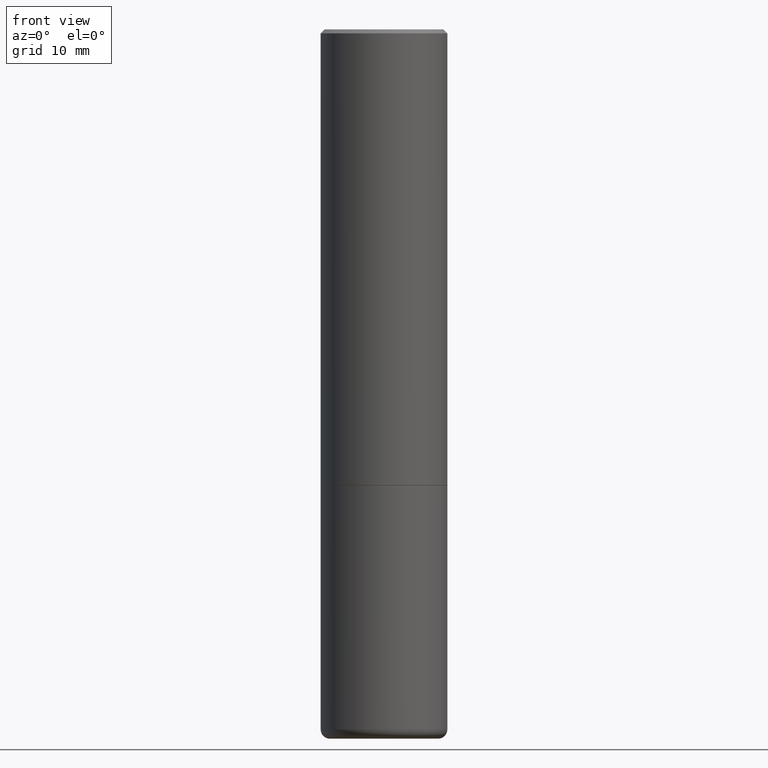
[diagram: clean part render]
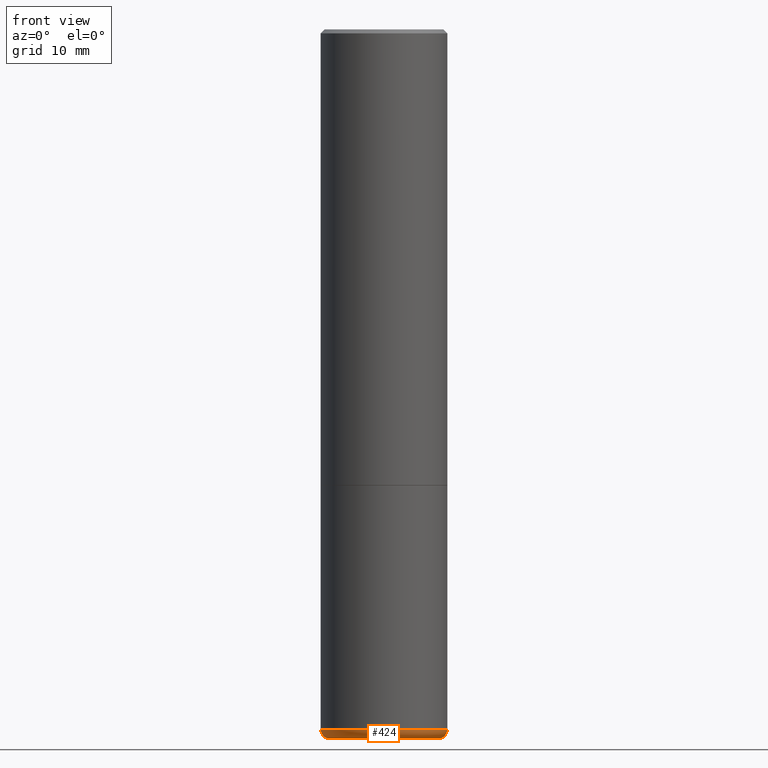
[diagram: same view with one face highlighted and labeled with its STEP entity id]
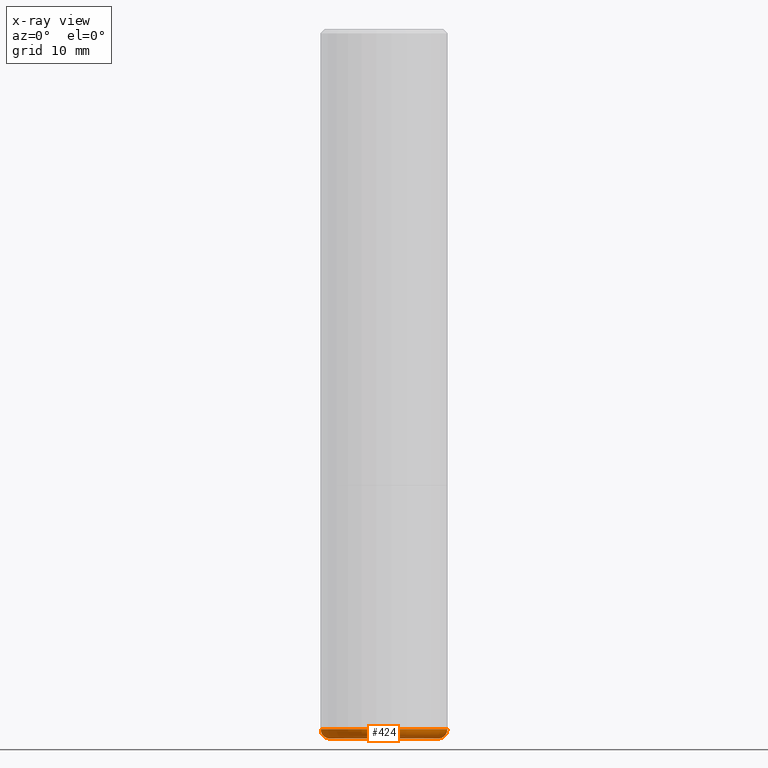
[diagram: x-ray of the same camera — body ghosted, the highlighted face saturated]
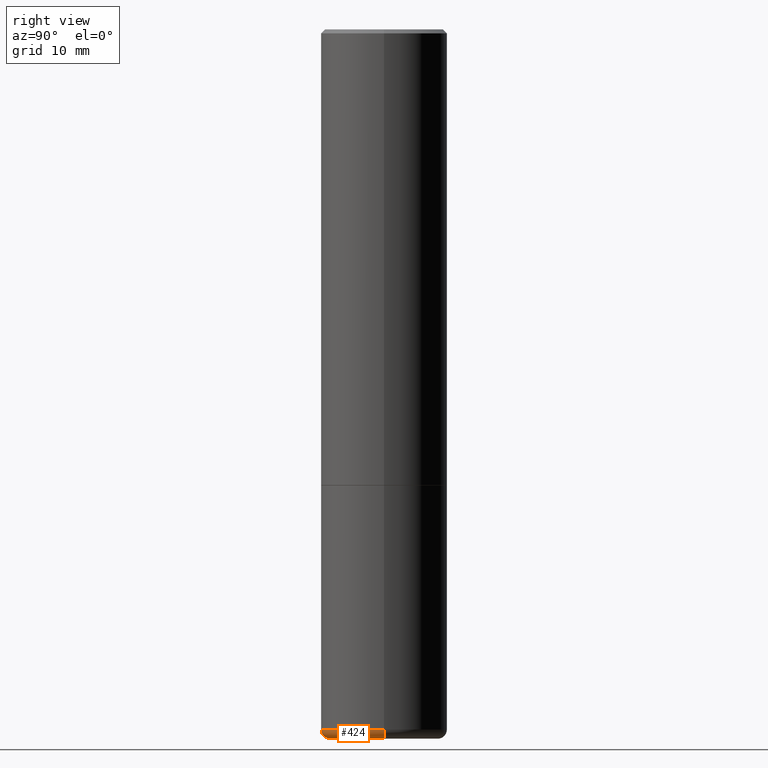
[diagram: same view with one face highlighted and labeled with its STEP entity id]
A machine part, front view. The second image highlights one B-rep face of the part: STEP entity #424.
The next image is the same camera in x-ray: the body ghosted, the highlighted face saturated — about 0% of this face is hidden behind the body in this view.
A second angle (right view) of the same face is appended — the face is thin or edge-on in the first view.
In plain terms, the highlighted toroidal blend (fillet) surface has major radius 6.7945 mm and minor (blend) radius 1.143 mm.
Its self-contained STEP definition (entity closure, byte-faithful):
#9 = TOROIDAL_SURFACE ( 'NONE', #246, 0.2675000000000000155, 0.04499999999999999140 ) ;
#15 = VERTEX_POINT ( 'NONE', #436 ) ;
#44 = DIRECTION ( 'NONE',  ( -2.445468806185136597E-29, 3.491481338843145583E-15, 1.000000000000000000 ) ) ;
#63 = EDGE_CURVE ( 'NONE', #77, #297, #294, .T. ) ;
#77 = VERTEX_POINT ( 'NONE', #331 ) ;
#79 = CARTESIAN_POINT ( 'NONE',  ( 0.3125000000000000000, -1.424545918540237458E-14, -3.455061670936044216 ) ) ;
#92 = CARTESIAN_POINT ( 'NONE',  ( 0.2675000000000000155, -1.393122586490649131E-14, -3.455061670936044216 ) ) ;
#93 = ORIENTED_EDGE ( 'NONE', *, *, #433, .T. ) ;
#94 = DIRECTION ( 'NONE',  ( 1.000000000000000000, -6.982962677686269077E-15, 4.883557194083114022E-29 ) ) ;
#97 = EDGE_CURVE ( 'NONE', #15, #297, #391, .T. ) ;
#104 = CARTESIAN_POINT ( 'NONE',  ( -0.2651448819690678804, -1.008952714362760311E-14, -3.500000000000000000 ) ) ;
#123 = CIRCLE ( 'NONE', #176, 0.04499999999999999833 ) ;
#133 = DIRECTION ( 'NONE',  ( 1.000000000000000000, -6.982962677686269077E-15, 0.000000000000000000 ) ) ;
#158 = AXIS2_PLACEMENT_3D ( 'NONE', #277, #344, #133 ) ;
#176 = AXIS2_PLACEMENT_3D ( 'NONE', #409, #236, #343 ) ;
#189 = DIRECTION ( 'NONE',  ( 1.000000000000000000, -6.982962677686266711E-15, 0.000000000000000000 ) ) ;
#193 = DIRECTION ( 'NONE',  ( -2.445468806185136597E-29, 3.491481338843145583E-15, 1.000000000000000000 ) ) ;
#204 = CIRCLE ( 'NONE', #381, 0.2651448819690678804 ) ;
#210 = AXIS2_PLACEMENT_3D ( 'NONE', #92, #293, #264 ) ;
#215 = CARTESIAN_POINT ( 'NONE',  ( 8.449245539719989979E-29, -1.206328334862541465E-14, -3.455061670936044216 ) ) ;
#216 = ORIENTED_EDGE ( 'NONE', *, *, #97, .F. ) ;
#236 = DIRECTION ( 'NONE',  ( 7.105427357601001859E-15, 1.000000000000000000, -3.491481338843145583E-15 ) ) ;
#246 = AXIS2_PLACEMENT_3D ( 'NONE', #215, #44, #94 ) ;
#264 = DIRECTION ( 'NONE',  ( 1.000000000000000000, -6.982962677686269077E-15, 0.000000000000000000 ) ) ;
#276 = EDGE_CURVE ( 'NONE', #289, #15, #123, .T. ) ;
#277 = CARTESIAN_POINT ( 'NONE',  ( 8.449245539719989979E-29, -1.206328334862541465E-14, -3.455061670936044216 ) ) ;
#281 = FACE_OUTER_BOUND ( 'NONE', #347, .T. ) ;
#289 = VERTEX_POINT ( 'NONE', #104 ) ;
#293 = DIRECTION ( 'NONE',  ( -6.982962677686266711E-15, -1.000000000000000000, 3.491481338843145583E-15 ) ) ;
#294 = CIRCLE ( 'NONE', #210, 0.04499999999999999833 ) ;
#297 = VERTEX_POINT ( 'NONE', #79 ) ;
#331 = CARTESIAN_POINT ( 'NONE',  ( 0.2651448819690678804, -1.407168150092053958E-14, -3.500000000000000000 ) ) ;
#343 = DIRECTION ( 'NONE',  ( -1.000000000000000000, 7.105427357600990815E-15, 0.000000000000000000 ) ) ;
#344 = DIRECTION ( 'NONE',  ( -2.445468806185136597E-29, 3.491481338843145583E-15, 1.000000000000000000 ) ) ;
#347 = EDGE_LOOP ( 'NONE', ( #352, #93, #432, #216 ) ) ;
#352 = ORIENTED_EDGE ( 'NONE', *, *, #276, .F. ) ;
#381 = AXIS2_PLACEMENT_3D ( 'NONE', #415, #193, #189 ) ;
#391 = CIRCLE ( 'NONE', #158, 0.3125000000000000000 ) ;
#409 = CARTESIAN_POINT ( 'NONE',  ( -0.2675000000000000155, -1.016258153046714615E-14, -3.455061670936044216 ) ) ;
#415 = CARTESIAN_POINT ( 'NONE',  ( 8.559140821647976968E-29, -1.222018468595100934E-14, -3.500000000000000000 ) ) ;
#424 = ADVANCED_FACE ( 'NONE', ( #281 ), #9, .T. ) ;
#432 = ORIENTED_EDGE ( 'NONE', *, *, #63, .T. ) ;
#433 = EDGE_CURVE ( 'NONE', #289, #77, #204, .T. ) ;
#436 = CARTESIAN_POINT ( 'NONE',  ( -0.3125000000000000000, -7.739112131260931893E-15, -3.455061670936044216 ) ) ;